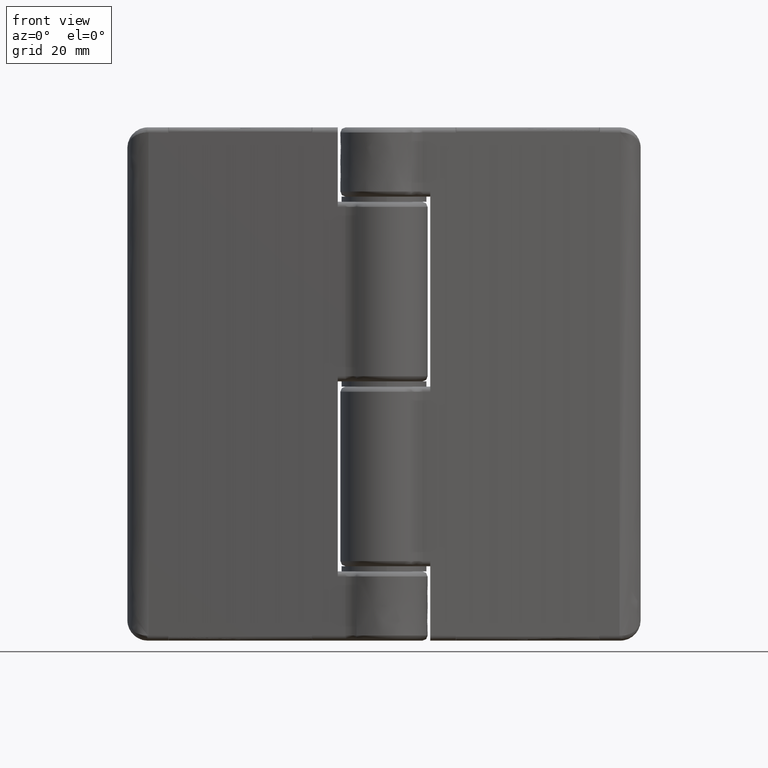
[diagram: clean part render]
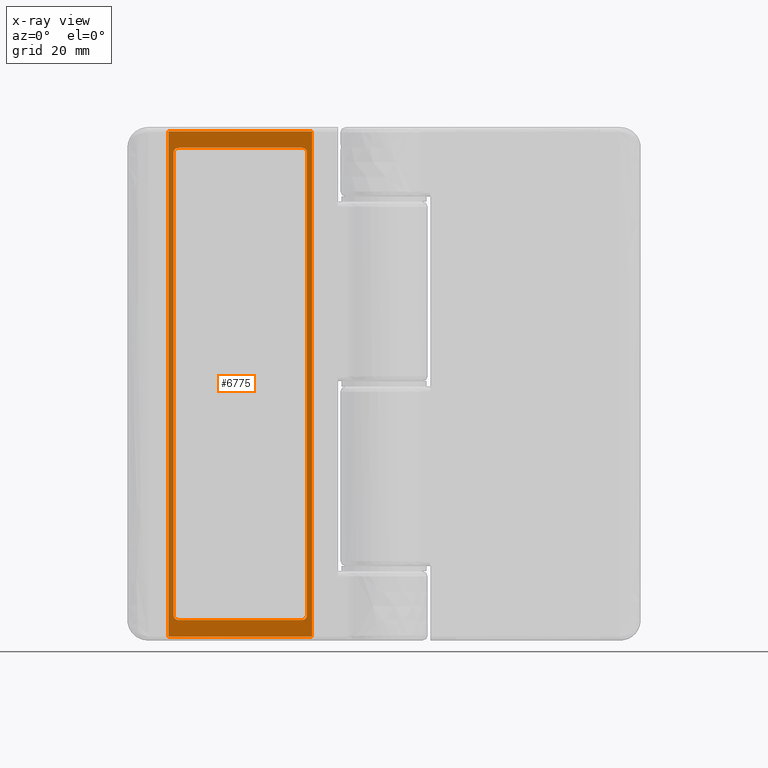
[diagram: x-ray — body ghosted, one internal face saturated and labeled with its STEP entity id]
A machine part, front view, then the same camera in x-ray: the body is ghosted and one INTERNAL B-rep face — a face not visible from any outside direction — is saturated and labeled: STEP entity #6775.
In plain terms, the highlighted face is a freeform B-spline surface patch.
Its self-contained STEP definition (entity closure, byte-faithful):
#4109=CARTESIAN_POINT('',(-41.0,-1.984343333113035,5.0));
#4110=VERTEX_POINT('',#4109);
#4118=CARTESIAN_POINT('',(-40.0,-2.071832020191655,4.0));
#4119=VERTEX_POINT('',#4118);
#4120=CARTESIAN_POINT('',(-41.0,-1.984343333113035,5.0));
#4121=CARTESIAN_POINT('',(-41.000000000000007,-1.984343333113035,4.0));
#4122=CARTESIAN_POINT('',(-40.0,-2.071832020191565,4.0));
#4130=(BOUNDED_CURVE()B_SPLINE_CURVE(2,(#4120,#4121,#4122),.UNSPECIFIED.,.F.,.U.)CURVE()GEOMETRIC_REPRESENTATION_ITEM()QUASI_UNIFORM_CURVE()RATIONAL_B_SPLINE_CURVE((1.0,0.707106781186547,1.0))REPRESENTATION_ITEM(''));
#4131=EDGE_CURVE('',#4110,#4119,#4130,.T.);
#4161=CARTESIAN_POINT('',(-16.0,-4.171560510076280,4.0));
#4162=VERTEX_POINT('',#4161);
#4163=CARTESIAN_POINT('',(-16.0,-4.171560510076280,4.0));
#4164=CARTESIAN_POINT('',(-40.0,-2.071832020191655,4.0));
#4165=QUASI_UNIFORM_CURVE('',1,(#4163,#4164),.UNSPECIFIED.,.F.,.U.);
#4166=EDGE_CURVE('',#4162,#4119,#4165,.T.);
#4199=CARTESIAN_POINT('',(-15.0,-4.259049197154806,5.0));
#4200=VERTEX_POINT('',#4199);
#4201=CARTESIAN_POINT('',(-16.0,-4.171560510076280,4.0));
#4202=CARTESIAN_POINT('',(-15.000000000000002,-4.259049197154810,4.0));
#4203=CARTESIAN_POINT('',(-15.0,-4.259049197154811,5.0));
#4211=(BOUNDED_CURVE()B_SPLINE_CURVE(2,(#4201,#4202,#4203),.UNSPECIFIED.,.F.,.U.)CURVE()GEOMETRIC_REPRESENTATION_ITEM()QUASI_UNIFORM_CURVE()RATIONAL_B_SPLINE_CURVE((1.0,0.707106781186547,1.0))REPRESENTATION_ITEM(''));
#4212=EDGE_CURVE('',#4162,#4200,#4211,.T.);
#4242=CARTESIAN_POINT('',(-15.0,-4.259049197154920,95.0));
#4243=VERTEX_POINT('',#4242);
#4244=CARTESIAN_POINT('',(-15.0,-4.259049197154920,95.0));
#4245=CARTESIAN_POINT('',(-15.0,-4.259049197154806,5.0));
#4246=QUASI_UNIFORM_CURVE('',1,(#4244,#4245),.UNSPECIFIED.,.F.,.U.);
#4247=EDGE_CURVE('',#4243,#4200,#4246,.T.);
#4280=CARTESIAN_POINT('',(-16.0,-4.171560510076290,96.0));
#4281=VERTEX_POINT('',#4280);
#4282=CARTESIAN_POINT('',(-15.0,-4.259049197154811,95.0));
#4283=CARTESIAN_POINT('',(-14.999999999999998,-4.259049197154812,95.999999999999986));
#4284=CARTESIAN_POINT('',(-16.0,-4.171560510076280,96.0));
#4292=(BOUNDED_CURVE()B_SPLINE_CURVE(2,(#4282,#4283,#4284),.UNSPECIFIED.,.F.,.U.)CURVE()GEOMETRIC_REPRESENTATION_ITEM()QUASI_UNIFORM_CURVE()RATIONAL_B_SPLINE_CURVE((1.0,0.707106781186547,1.0))REPRESENTATION_ITEM(''));
#4293=EDGE_CURVE('',#4243,#4281,#4292,.T.);
#4323=CARTESIAN_POINT('',(-40.0,-2.071832020191565,96.0));
#4324=VERTEX_POINT('',#4323);
#4325=CARTESIAN_POINT('',(-40.0,-2.071832020191565,96.0));
#4326=CARTESIAN_POINT('',(-16.0,-4.171560510076290,96.0));
#4327=QUASI_UNIFORM_CURVE('',1,(#4325,#4326),.UNSPECIFIED.,.F.,.U.);
#4328=EDGE_CURVE('',#4324,#4281,#4327,.T.);
#4361=CARTESIAN_POINT('',(-41.0,-1.984343333113035,95.0));
#4362=VERTEX_POINT('',#4361);
#4363=CARTESIAN_POINT('',(-40.0,-2.071832020191565,96.0));
#4364=CARTESIAN_POINT('',(-40.999999999999993,-1.984343333113034,96.000000000000014));
#4365=CARTESIAN_POINT('',(-41.0,-1.984343333113035,95.0));
#4373=(BOUNDED_CURVE()B_SPLINE_CURVE(2,(#4363,#4364,#4365),.UNSPECIFIED.,.F.,.U.)CURVE()GEOMETRIC_REPRESENTATION_ITEM()QUASI_UNIFORM_CURVE()RATIONAL_B_SPLINE_CURVE((1.0,0.707106781186548,1.0))REPRESENTATION_ITEM(''));
#4374=EDGE_CURVE('',#4324,#4362,#4373,.T.);
#4404=CARTESIAN_POINT('',(-41.0,-1.984343333113035,5.0));
#4405=CARTESIAN_POINT('',(-41.0,-1.984343333113035,95.0));
#4406=QUASI_UNIFORM_CURVE('',1,(#4404,#4405),.UNSPECIFIED.,.F.,.U.);
#4407=EDGE_CURVE('',#4110,#4362,#4406,.T.);
#4481=CARTESIAN_POINT('',(-14.0,-4.346537884233301,99.200000000000003));
#4482=VERTEX_POINT('',#4481);
#4488=CARTESIAN_POINT('',(-14.0,-4.346537884233301,0.800000000000023));
#4489=VERTEX_POINT('',#4488);
#4490=CARTESIAN_POINT('',(-14.0,-4.346537884233301,99.200000000000003));
#4491=CARTESIAN_POINT('',(-14.0,-4.346537884233301,0.800000000000023));
#4492=QUASI_UNIFORM_CURVE('',1,(#4490,#4491),.UNSPECIFIED.,.F.,.U.);
#4493=EDGE_CURVE('',#4482,#4489,#4492,.T.);
#4536=CARTESIAN_POINT('',(-42.0,-1.896854646034440,99.200000000000003));
#4537=VERTEX_POINT('',#4536);
#4538=CARTESIAN_POINT('',(-42.0,-1.896854646034440,0.800000000000011));
#4539=VERTEX_POINT('',#4538);
#4540=CARTESIAN_POINT('',(-42.0,-1.896854646034440,99.200000000000003));
#4541=CARTESIAN_POINT('',(-42.0,-1.896854646034440,0.800000000000011));
#4542=QUASI_UNIFORM_CURVE('',1,(#4540,#4541),.UNSPECIFIED.,.F.,.U.);
#4543=EDGE_CURVE('',#4537,#4539,#4542,.T.);
#6746=CARTESIAN_POINT('',(-43.398599945730581,-1.774492973034368,-4.115079457727783));
#6747=CARTESIAN_POINT('',(-12.601399303250910,-4.468899622938998,-4.115079457727783));
#6748=CARTESIAN_POINT('',(-43.398599945730581,-1.774492973034368,104.115075058905010));
#6749=CARTESIAN_POINT('',(-12.601399303250910,-4.468899622938998,104.115075058905010));
#6750=B_SPLINE_SURFACE_WITH_KNOTS('',1,1,((#6746,#6748),(#6747,#6749)),.UNSPECIFIED.,.F.,.F.,.U.,(2,2),(2,2),(0.0,30.914841008942620),(0.0,108.230154516632790),.UNSPECIFIED.);
#6751=ORIENTED_EDGE('',*,*,#4493,.F.);
#6752=CARTESIAN_POINT('',(-14.0,-4.346537884233301,99.200000000000003));
#6753=CARTESIAN_POINT('',(-42.0,-1.896854646034440,99.200000000000003));
#6754=QUASI_UNIFORM_CURVE('',1,(#6752,#6753),.UNSPECIFIED.,.F.,.U.);
#6755=EDGE_CURVE('',#4482,#4537,#6754,.T.);
#6756=ORIENTED_EDGE('',*,*,#6755,.T.);
#6757=ORIENTED_EDGE('',*,*,#4543,.T.);
#6758=CARTESIAN_POINT('',(-42.0,-1.896854646034440,0.800000000000011));
#6759=CARTESIAN_POINT('',(-14.0,-4.346537884233301,0.800000000000023));
#6760=QUASI_UNIFORM_CURVE('',1,(#6758,#6759),.UNSPECIFIED.,.F.,.U.);
#6761=EDGE_CURVE('',#4539,#4489,#6760,.T.);
#6762=ORIENTED_EDGE('',*,*,#6761,.T.);
#6763=EDGE_LOOP('',(#6751,#6756,#6757,#6762));
#6764=FACE_OUTER_BOUND('',#6763,.T.);
#6765=ORIENTED_EDGE('',*,*,#4407,.T.);
#6766=ORIENTED_EDGE('',*,*,#4374,.F.);
#6767=ORIENTED_EDGE('',*,*,#4328,.T.);
#6768=ORIENTED_EDGE('',*,*,#4293,.F.);
#6769=ORIENTED_EDGE('',*,*,#4247,.T.);
#6770=ORIENTED_EDGE('',*,*,#4212,.F.);
#6771=ORIENTED_EDGE('',*,*,#4166,.T.);
#6772=ORIENTED_EDGE('',*,*,#4131,.F.);
#6773=EDGE_LOOP('',(#6765,#6766,#6767,#6768,#6769,#6770,#6771,#6772));
#6774=FACE_BOUND('',#6773,.T.);
#6775=ADVANCED_FACE('',(#6764,#6774),#6750,.T.);